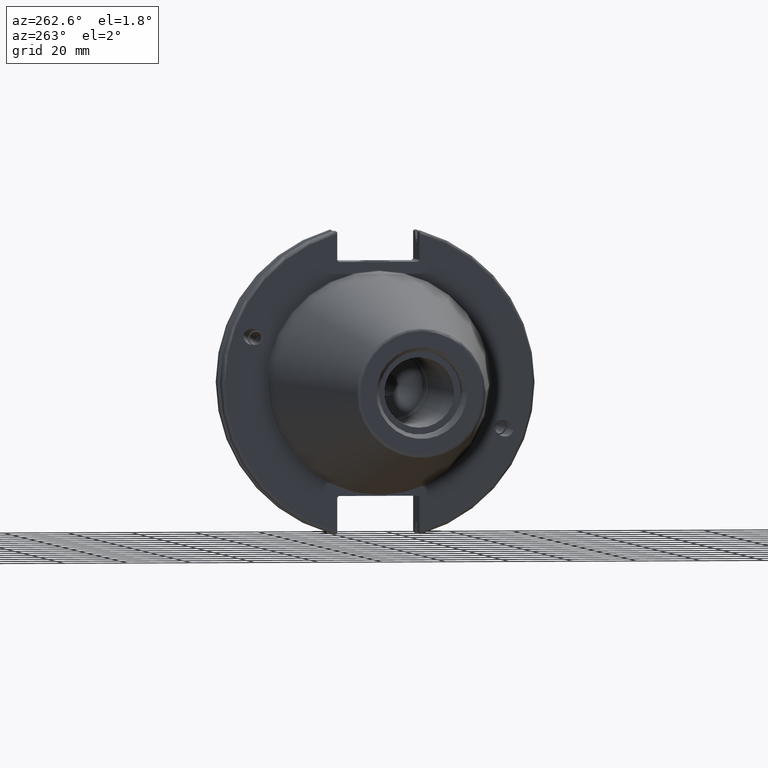
[diagram: clean part render]
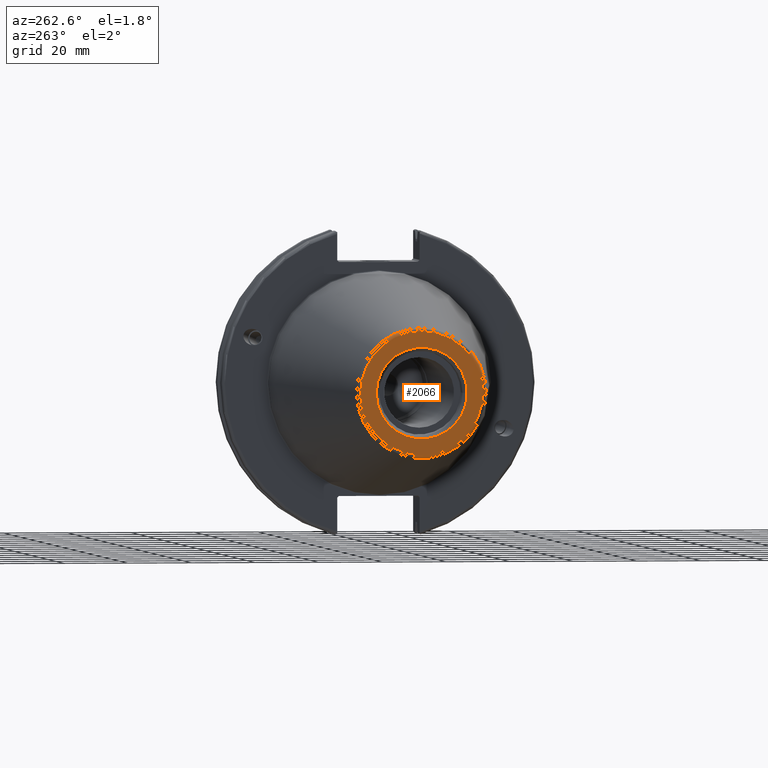
[diagram: same view with one face highlighted and labeled with its STEP entity id]
A machine part, auxiliary view. The second image highlights one B-rep face of the part: STEP entity #2066.
In plain terms, the highlighted planar face has unit normal (-1, 0, 0).
Its self-contained STEP definition (entity closure, byte-faithful):
#53=PLANE('',#2337);
#120=FACE_BOUND('',#354,.T.);
#235=FACE_OUTER_BOUND('',#353,.T.);
#353=EDGE_LOOP('',(#1811,#1812));
#354=EDGE_LOOP('',(#1813,#1814));
#732=CIRCLE('',#2334,19.2435889303637);
#733=CIRCLE('',#2335,19.2435889303637);
#735=CIRCLE('',#2338,14.2875);
#736=CIRCLE('',#2339,14.2875);
#968=VERTEX_POINT('',#4074);
#969=VERTEX_POINT('',#4076);
#970=VERTEX_POINT('',#4081);
#971=VERTEX_POINT('',#4082);
#1269=EDGE_CURVE('',#968,#969,#732,.T.);
#1270=EDGE_CURVE('',#969,#968,#733,.T.);
#1272=EDGE_CURVE('',#970,#971,#735,.T.);
#1273=EDGE_CURVE('',#971,#970,#736,.T.);
#1811=ORIENTED_EDGE('',*,*,#1270,.F.);
#1812=ORIENTED_EDGE('',*,*,#1269,.F.);
#1813=ORIENTED_EDGE('',*,*,#1272,.T.);
#1814=ORIENTED_EDGE('',*,*,#1273,.T.);
#2066=ADVANCED_FACE('',(#235,#120),#53,.T.);
#2334=AXIS2_PLACEMENT_3D('',#4077,#2905,#2906);
#2335=AXIS2_PLACEMENT_3D('',#4078,#2907,#2908);
#2337=AXIS2_PLACEMENT_3D('',#4080,#2911,#2912);
#2338=AXIS2_PLACEMENT_3D('',#4083,#2913,#2914);
#2339=AXIS2_PLACEMENT_3D('',#4084,#2915,#2916);
#2905=DIRECTION('center_axis',(1.,0.,0.));
#2906=DIRECTION('ref_axis',(0.,-1.,1.83697019872103E-16));
#2907=DIRECTION('center_axis',(1.,0.,0.));
#2908=DIRECTION('ref_axis',(0.,-1.,1.83697019872103E-16));
#2911=DIRECTION('center_axis',(-1.,0.,0.));
#2912=DIRECTION('ref_axis',(0.,0.,1.));
#2913=DIRECTION('center_axis',(1.,0.,0.));
#2914=DIRECTION('ref_axis',(0.,0.,-1.));
#2915=DIRECTION('center_axis',(1.,0.,0.));
#2916=DIRECTION('ref_axis',(0.,0.,-1.));
#4074=CARTESIAN_POINT('',(-101.6,-2.35665995876774E-15,19.2435889303637));
#4076=CARTESIAN_POINT('',(-101.6,19.2435889303637,-1.17832997938387E-15));
#4077=CARTESIAN_POINT('Origin',(-101.6,0.,0.));
#4078=CARTESIAN_POINT('Origin',(-101.6,0.,0.));
#4080=CARTESIAN_POINT('Origin',(-101.6,20.1083333333333,0.));
#4081=CARTESIAN_POINT('',(-101.6,14.2875,0.));
#4082=CARTESIAN_POINT('',(-101.6,-14.2875,-1.74971411428178E-15));
#4083=CARTESIAN_POINT('Origin',(-101.6,0.,0.));
#4084=CARTESIAN_POINT('Origin',(-101.6,0.,0.));